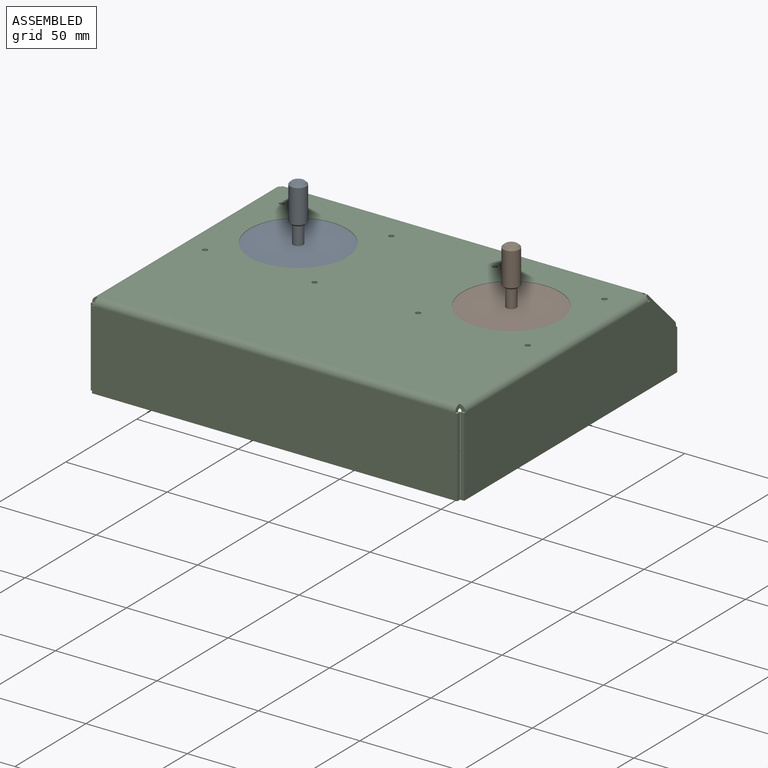
[diagram: assembled view]
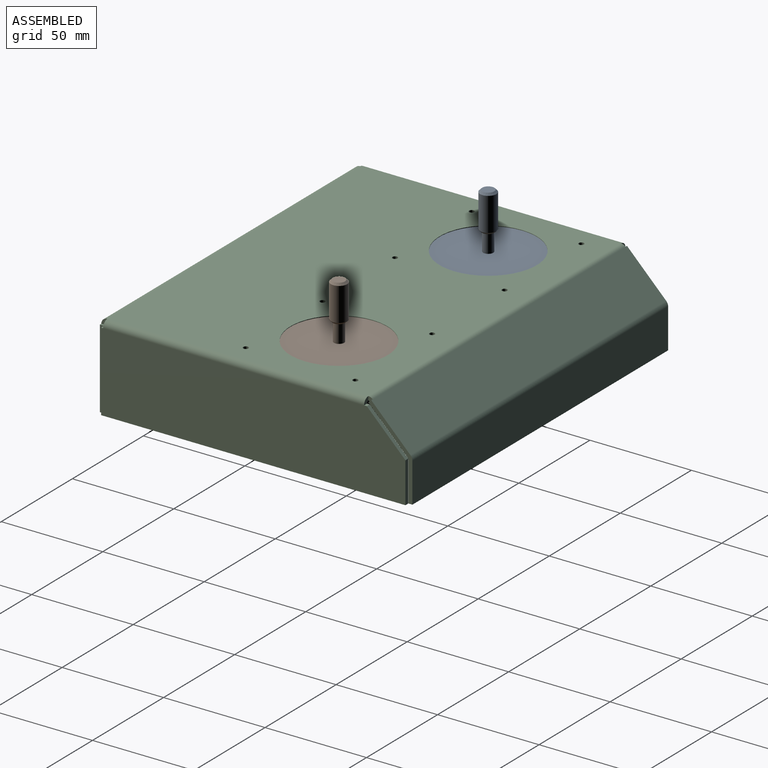
[diagram: assembled view, second angle]
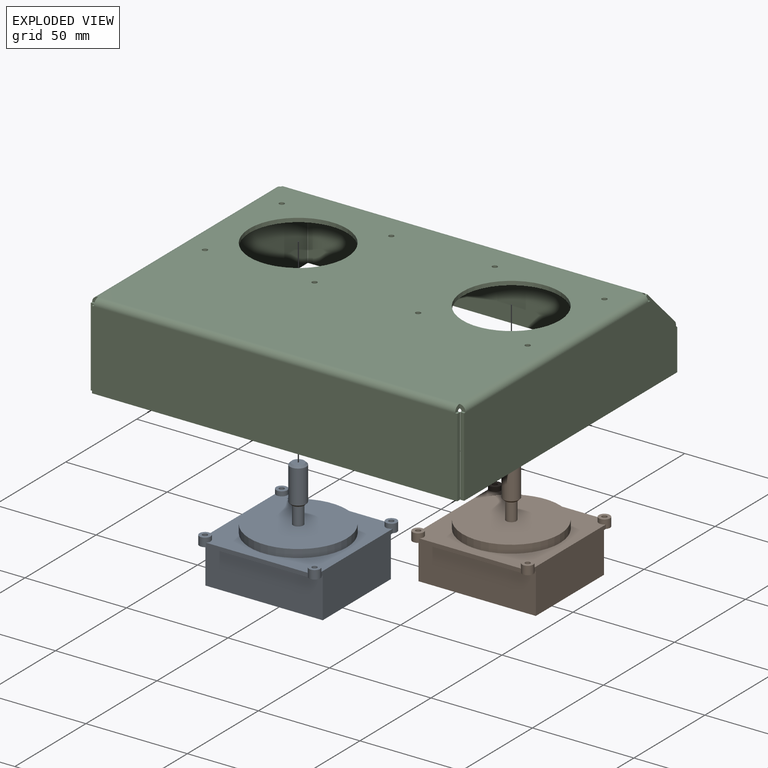
[diagram: exploded view]
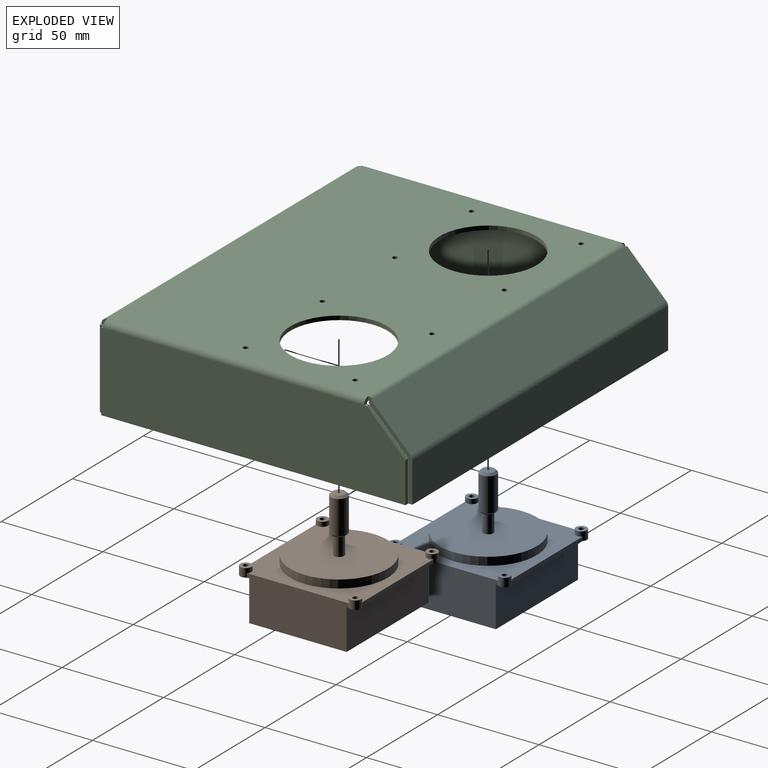
[diagram: exploded view, second angle]
ASSEMBLY  parts=3 mates=2
PART A: 31 faces, bbox 59.5x59.5x53.5 mm
  f0: plane 59.5x59.5mm, normal (0,0,-1), area 585.5mm2, adj f2,f3,f4,f5,f9,f10,f12,f13
  f1: cylinder r=2.5mm len=9mm, axis (0,0,-1), area 141.4mm2, adj f8,f22
  f2: plane 50.23x2mm, normal (-1,0,0), area 100.5mm2, adj f0,f6,f9,f18
  f3: plane 50.23x2mm, normal (0,-1,0), area 100.5mm2, adj f0,f6,f15,f18
  f4: plane 50.23x2mm, normal (1,0,0), area 100.5mm2, adj f0,f6,f13,f15
  f5: plane 50.23x2mm, normal (0,1,0), area 100.5mm2, adj f0,f6,f9,f13
  f6: plane 58x58mm, normal (0,0,1), area 1475mm2, adj f2,f3,f4,f5,f7,f9,f13,f15
  f7: cylinder r=24mm len=48mm, axis (0,0,-1), area 603.2mm2, adj f6,f8
  f8: plane 48x48mm, normal (0,0,1), area 1789.9mm2, adj f1,f7
  f9: cylinder r=2.75mm len=5.5mm, axis (0,0,-1), area 55.8mm2, adj f0,f2,f5,f6,f11
  f10: cylinder r=1.25mm len=4.25mm, axis (0,0,-1), area 33.4mm2, adj f0,f11
  f11: plane 5.5x5.5mm, normal (0,0,1), area 18.8mm2, adj f9,f10
  f12: cylinder r=1.25mm len=4.25mm, axis (0,0,-1), area 33.4mm2, adj f0,f14
  f13: cylinder r=2.75mm len=5.5mm, axis (0,0,-1), area 55.8mm2, adj f0,f4,f5,f6,f14
  f14: plane 5.5x5.5mm, normal (0,0,1), area 18.8mm2, adj f12,f13
  f15: cylinder r=2.75mm len=5.5mm, axis (0,0,-1), area 55.8mm2, adj f0,f3,f4,f6,f17
  f16: cylinder r=1.25mm len=4.25mm, axis (0,0,-1), area 33.4mm2, adj f0,f17
  f17: plane 5.5x5.5mm, normal (0,0,1), area 18.8mm2, adj f15,f16
  f18: cylinder r=2.75mm len=5.5mm, axis (0,0,-1), area 55.8mm2, adj f0,f2,f3,f6,f20
  f19: cylinder r=1.25mm len=4.25mm, axis (0,0,-1), area 33.4mm2, adj f0,f20
  f20: plane 5.5x5.5mm, normal (0,0,1), area 18.8mm2, adj f18,f19
  f21: cylinder r=4mm len=16.5mm, axis (0,0,-1), area 414.7mm2, adj f24,f25
  f22: plane 6x6mm, normal (0,0,-1), area 8.6mm2, adj f1,f25
  f23: plane 6x6mm, normal (0,0,1), area 28.3mm2, adj f24
  f24: cone r=3mm half-angle=45deg, axis (0,0,-1), area 31.1mm2, adj f21,f23
  f25: cone r=4mm half-angle=45deg, axis (0,0,1), area 31.1mm2, adj f21,f22
  f26: plane 57.8x20mm, normal (0,-1,0), area 1156mm2, adj f0,f27,f29,f30
  f27: plane 48x20mm, normal (1,0,0), area 960mm2, adj f0,f26,f28,f30
  f28: plane 57.8x20mm, normal (0,1,0), area 1156mm2, adj f0,f27,f29,f30
  f29: plane 48x20mm, normal (-1,0,0), area 960mm2, adj f0,f26,f28,f30
  f30: plane 57.8x48mm, normal (0,0,-1), area 2774.4mm2, adj f26,f27,f28,f29
PART B: same geometry as A
PART C: 66 faces, bbox 184x154x42 mm
  f0: plane 2x0.98mm, normal (0,0,1), area 2mm2, adj f5,f6,f7,f59
  f1: plane 2x1.39mm, normal (0,0,1), area 2.8mm2, adj f2,f6,f7,f58
  f2: plane 19.01x19.01mm, normal (0,0.71,0.71), area 53.8mm2, adj f1,f3,f6,f7
  f3: plane 19.99x2mm, normal (0,1,0), area 40mm2, adj f2,f4,f6,f7
  f4: plane 149.96x2mm, normal (0,0,-1), area 299.9mm2, adj f3,f5,f6,f7
  f5: plane 39x2mm, normal (0,-1,0), area 78mm2, adj f0,f4,f6,f7
  f6: plane 149.96x39mm, normal (-1,0,0), area 5667.8mm2, adj f0,f1,f2,f3,f4,f5,f60
  f7: plane 149.96x39mm, normal (1,0,0), area 5667.8mm2, adj f0,f1,f2,f3,f4,f5,f61
  f8: plane 2x1.39mm, normal (0,0,1), area 2.8mm2, adj f9,f14,f15,f62
  f9: plane 19.01x19.01mm, normal (0,0.71,0.71), area 53.8mm2, adj f8,f13,f14,f15
  f10: plane 2x0.98mm, normal (0,0,1), area 2mm2, adj f11,f14,f15,f63
  f11: plane 39x2mm, normal (0,-1,0), area 78mm2, adj f10,f12,f14,f15
  f12: plane 149.96x2mm, normal (0,0,-1), area 299.9mm2, adj f11,f13,f14,f15
  f13: plane 19.99x2mm, normal (0,1,0), area 40mm2, adj f9,f12,f14,f15
  f14: plane 149.96x39mm, normal (1,0,0), area 5667.8mm2, adj f8,f9,f10,f11,f12,f13,f64
  f15: plane 149.96x39mm, normal (-1,0,0), area 5667.8mm2, adj f8,f9,f10,f11,f12,f13,f65
  f16: plane 2x0.98mm, normal (0,0,1), area 2mm2, adj f17,f21,f22,f55
  f17: plane 39x2mm, normal (1,0,0), area 78mm2, adj f16,f20,f21,f22
  f18: plane 2x0.98mm, normal (0,0,1), area 2mm2, adj f19,f21,f22,f54
  f19: plane 39x2mm, normal (-1,0,0), area 78mm2, adj f18,f20,f21,f22
  f20: plane 179.96x2mm, normal (0,0,-1), area 359.9mm2, adj f17,f19,f21,f22
  f21: plane 179.96x39mm, normal (0,-1,0), area 7018.4mm2, adj f16,f17,f18,f19,f20,f56
  f22: plane 179.96x39mm, normal (0,1,0), area 7018.4mm2, adj f16,f17,f18,f19,f20,f57
  f23: cylinder r=1.25mm len=2.5mm, axis (0,0,1), area 15.7mm2, adj f33,f34
  f24: cylinder r=1.25mm len=2.5mm, axis (0,0,1), area 15.7mm2, adj f33,f34
  f25: cylinder r=1.25mm len=2.5mm, axis (0,0,1), area 15.7mm2, adj f33,f34
  f26: cylinder r=1.25mm len=2.5mm, axis (0,0,1), area 15.7mm2, adj f33,f34
  f27: cylinder r=24mm len=48mm, axis (0,0,1), area 301.6mm2, adj f33,f34
  f28: cylinder r=1.25mm len=2.5mm, axis (0,0,1), area 15.7mm2, adj f33,f34
  f29: cylinder r=1.25mm len=2.5mm, axis (0,0,1), area 15.7mm2, adj f33,f34
  f30: cylinder r=1.25mm len=2.5mm, axis (0,0,1), area 15.7mm2, adj f33,f34
  f31: cylinder r=1.25mm len=2.5mm, axis (0,0,1), area 15.7mm2, adj f33,f34
  f32: cylinder r=24mm len=48mm, axis (0,0,1), area 301.6mm2, adj f33,f34
  f33: plane 178x128.59mm, normal (0,0,1), area 19229.9mm2, adj f23,f24,f25,f26,f27,f28,f29,f30
  f34: plane 178x128.59mm, normal (0,0,-1), area 19229.9mm2, adj f23,f24,f25,f26,f27,f28,f29,f30
  f35: plane 1.41x1.41mm, normal (0,-0.71,0.71), area 2mm2, adj f37,f39,f40,f50
  f36: plane 20.83x20.83mm, normal (1,0,0), area 54.9mm2, adj f38,f39,f40,f47
  f37: plane 20.83x20.83mm, normal (-1,0,0), area 54.9mm2, adj f35,f39,f40,f46
  f38: plane 1.41x1.41mm, normal (0,-0.71,0.71), area 2mm2, adj f36,f39,f40,f51
  f39: plane 179.96x19.41mm, normal (0,0.71,0.71), area 4941mm2, adj f35,f36,f37,f38,f48,f52
  f40: plane 179.96x19.41mm, normal (0,-0.71,-0.71), area 4941mm2, adj f35,f36,f37,f38,f49,f53
  f41: plane 19.59x2mm, normal (1,0,0), area 39.2mm2, adj f42,f44,f45,f47
  f42: plane 179.96x2mm, normal (0,0,-1), area 359.9mm2, adj f41,f43,f44,f45
  f43: plane 19.59x2mm, normal (-1,0,0), area 39.2mm2, adj f42,f44,f45,f46
  f44: plane 179.96x19.59mm, normal (0,1,0), area 3524.7mm2, adj f41,f42,f43,f48
  f45: plane 179.96x19.59mm, normal (0,-1,0), area 3524.7mm2, adj f41,f42,f43,f49
  f46: plane 2.29x2.12mm, normal (-1,0,0), area 3.1mm2, adj f37,f43,f48,f49
  f47: plane 2.29x2.12mm, normal (1,0,0), area 3.1mm2, adj f36,f41,f48,f49
  f48: cylinder r=3mm len=179.96mm, axis (-1,0,0), area 424mm2, adj f39,f44,f46,f47
  f49: cylinder r=1mm len=179.96mm, axis (-1,0,0), area 141.3mm2, adj f40,f45,f46,f47
  f50: plane 2.29x2.12mm, normal (-1,0,0), area 3.1mm2, adj f35,f52,f53,f58
  f51: plane 2.29x2.12mm, normal (1,0,0), area 3.1mm2, adj f38,f52,f53,f62
  f52: cylinder r=3mm len=178mm, axis (-1,0,0), area 419.4mm2, adj f33,f39,f50,f51
  f53: cylinder r=1mm len=178mm, axis (-1,0,0), area 139.8mm2, adj f34,f40,f50,f51
  f54: plane 3x3mm, normal (-1,0,0), area 6.3mm2, adj f18,f56,f57,f59
  f55: plane 3x3mm, normal (1,0,0), area 6.3mm2, adj f16,f56,f57,f63
  f56: cylinder r=3mm len=178mm, axis (-1,0,0), area 838.8mm2, adj f21,f33,f54,f55
  f57: cylinder r=1mm len=178mm, axis (-1,0,0), area 279.6mm2, adj f22,f34,f54,f55
  f58: plane 3x3mm, normal (0,1,0), area 6.3mm2, adj f1,f50,f60,f61
  f59: plane 3x3mm, normal (0,-1,0), area 6.3mm2, adj f0,f54,f60,f61
  f60: cylinder r=3mm len=128.59mm, axis (0,1,0), area 605.9mm2, adj f6,f33,f58,f59
  f61: cylinder r=1mm len=128.59mm, axis (0,1,0), area 202mm2, adj f7,f34,f58,f59
  f62: plane 3x3mm, normal (0,1,0), area 6.3mm2, adj f8,f51,f64,f65
  f63: plane 3x3mm, normal (0,-1,0), area 6.3mm2, adj f10,f55,f64,f65
  f64: cylinder r=3mm len=128.59mm, axis (0,1,0), area 605.9mm2, adj f14,f33,f62,f63
  f65: cylinder r=1mm len=128.59mm, axis (0,1,0), area 202mm2, adj f15,f34,f62,f63
PLACE A t=(-52.6,3.13,17.25)mm
PLACE B t=(52.4,3.13,17.25)mm
PLACE C t=(-0.1,-20.25,-18.5)mm
MATE fastened B.f9 <-> C.f24  axis (0,0,1) through (25.4,30.13,21.5)mm
MATE fastened A.f9 <-> C.f28  axis (0,0,1) through (-79.6,30.13,21.5)mm
